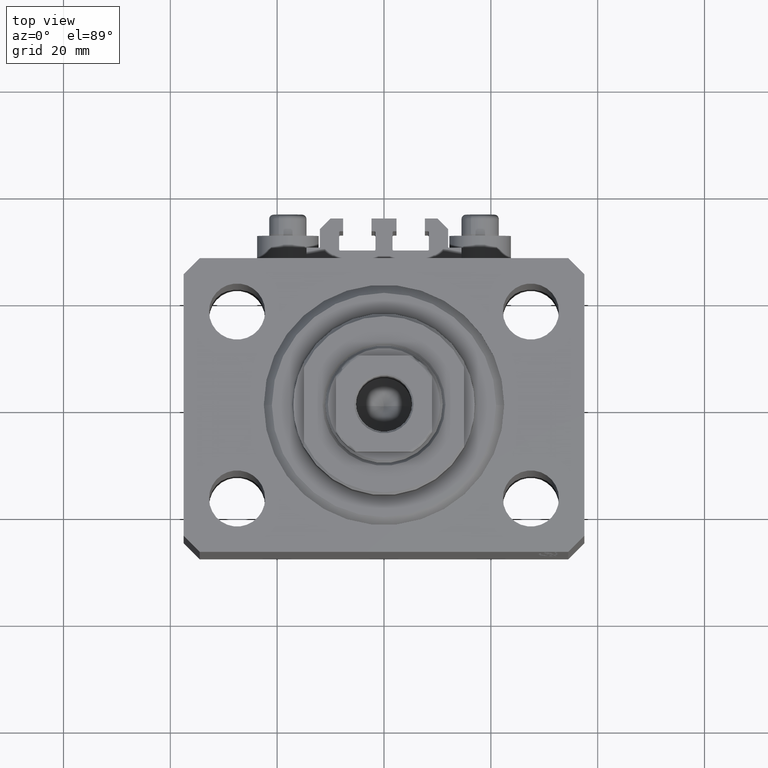
[diagram: clean part render]
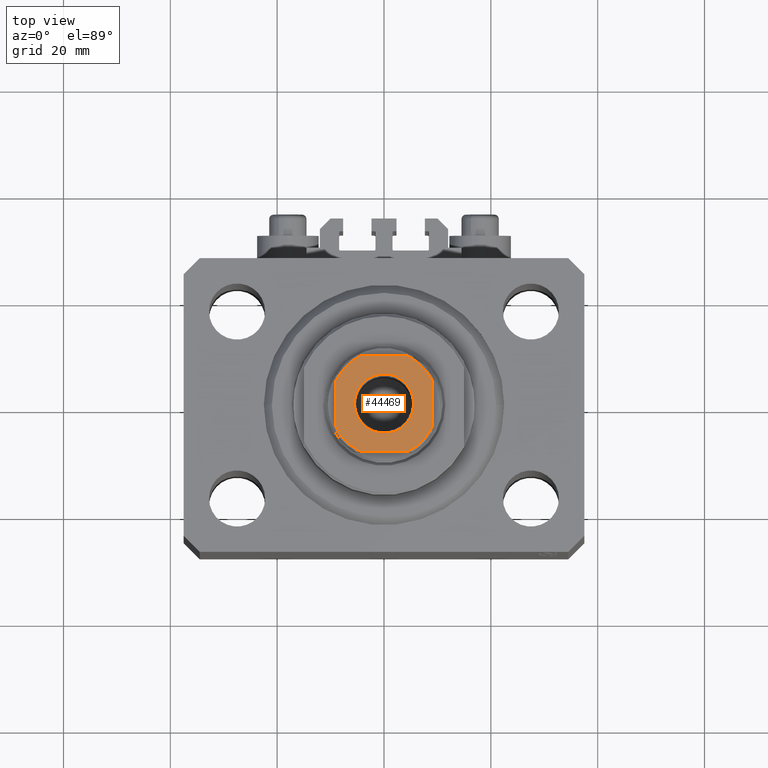
[diagram: same view with one face highlighted and labeled with its STEP entity id]
A machine part, top view. The second image highlights one B-rep face of the part: STEP entity #44469.
In plain terms, the highlighted planar face has unit normal (0, 0, 1).
Its self-contained STEP definition (entity closure, byte-faithful):
#485 = ORIENTED_EDGE ( 'NONE', *, *, #2831, .T. ) ;
#513 = CARTESIAN_POINT ( 'NONE',  ( -8.999999999999998224, -9.000000000000001776, 85.10000000000000853 ) ) ;
#1072 = DIRECTION ( 'NONE',  ( -0.000000000000000000, 0.000000000000000000, 1.000000000000000000 ) ) ;
#1442 = ORIENTED_EDGE ( 'NONE', *, *, #22910, .T. ) ;
#2441 = AXIS2_PLACEMENT_3D ( 'NONE', #5228, #26849, #38133 ) ;
#2831 = EDGE_CURVE ( 'NONE', #14877, #41230, #37973, .T. ) ;
#3029 = CIRCLE ( 'NONE', #9968, 10.00000000000000000 ) ;
#3437 = EDGE_CURVE ( 'NONE', #41939, #36572, #21681, .T. ) ;
#3634 = DIRECTION ( 'NONE',  ( 1.000000000000000000, 0.000000000000000000, 0.000000000000000000 ) ) ;
#3636 = DIRECTION ( 'NONE',  ( 1.000000000000000000, 0.000000000000000000, 0.000000000000000000 ) ) ;
#4735 = CIRCLE ( 'NONE', #2441, 10.00000000000000000 ) ;
#5228 = CARTESIAN_POINT ( 'NONE',  ( 0.000000000000000000, 0.000000000000000000, 85.10000000000000853 ) ) ;
#5535 = EDGE_CURVE ( 'NONE', #14366, #14877, #4735, .T. ) ;
#5881 = EDGE_CURVE ( 'NONE', #11663, #13601, #13959, .T. ) ;
#6689 = CARTESIAN_POINT ( 'NONE',  ( 9.000000000000000000, 8.999999999999998224, 85.10000000000000853 ) ) ;
#8510 = DIRECTION ( 'NONE',  ( 1.000000000000000000, 0.000000000000000000, 0.000000000000000000 ) ) ;
#9864 = CARTESIAN_POINT ( 'NONE',  ( -9.000000000000000000, 8.999999999999998224, 85.10000000000000853 ) ) ;
#9968 = AXIS2_PLACEMENT_3D ( 'NONE', #9993, #14279, #39278 ) ;
#9993 = CARTESIAN_POINT ( 'NONE',  ( 0.000000000000000000, 0.000000000000000000, 85.10000000000000853 ) ) ;
#10305 = LINE ( 'NONE', #6689, #13135 ) ;
#10796 = CIRCLE ( 'NONE', #12342, 10.00000000000000000 ) ;
#11663 = VERTEX_POINT ( 'NONE', #46394 ) ;
#11991 = CARTESIAN_POINT ( 'NONE',  ( 9.000000000000000000, 4.358898943540675752, 85.10000000000000853 ) ) ;
#12342 = AXIS2_PLACEMENT_3D ( 'NONE', #36538, #22839, #3634 ) ;
#12419 = DIRECTION ( 'NONE',  ( -0.000000000000000000, 0.000000000000000000, 1.000000000000000000 ) ) ;
#13135 = VECTOR ( 'NONE', #35985, 1000.000000000000000 ) ;
#13400 = DIRECTION ( 'NONE',  ( 1.000000000000000000, 0.000000000000000000, 0.000000000000000000 ) ) ;
#13601 = VERTEX_POINT ( 'NONE', #34333 ) ;
#13790 = AXIS2_PLACEMENT_3D ( 'NONE', #41712, #12419, #42179 ) ;
#13959 = LINE ( 'NONE', #14665, #27756 ) ;
#14279 = DIRECTION ( 'NONE',  ( -0.000000000000000000, 0.000000000000000000, 1.000000000000000000 ) ) ;
#14366 = VERTEX_POINT ( 'NONE', #38764 ) ;
#14665 = CARTESIAN_POINT ( 'NONE',  ( -9.000000000000000000, 8.999999999999998224, 85.10000000000000853 ) ) ;
#14877 = VERTEX_POINT ( 'NONE', #43371 ) ;
#15133 = ORIENTED_EDGE ( 'NONE', *, *, #5535, .T. ) ;
#15548 = AXIS2_PLACEMENT_3D ( 'NONE', #22362, #39666, #3636 ) ;
#16215 = VECTOR ( 'NONE', #22355, 1000.000000000000000 ) ;
#16337 = ORIENTED_EDGE ( 'NONE', *, *, #29899, .T. ) ;
#16816 = LINE ( 'NONE', #9864, #29974 ) ;
#18237 = ORIENTED_EDGE ( 'NONE', *, *, #29352, .T. ) ;
#18529 = AXIS2_PLACEMENT_3D ( 'NONE', #22427, #1072, #8510 ) ;
#19542 = PLANE ( 'NONE',  #18529 ) ;
#20751 = CARTESIAN_POINT ( 'NONE',  ( 9.000000000000001776, -4.358898943540675752, 85.10000000000000853 ) ) ;
#21681 = CIRCLE ( 'NONE', #15548, 5.549999999999985612 ) ;
#22355 = DIRECTION ( 'NONE',  ( 1.000000000000000000, 0.000000000000000000, 0.000000000000000000 ) ) ;
#22362 = CARTESIAN_POINT ( 'NONE',  ( 0.000000000000000000, 0.000000000000000000, 85.10000000000000853 ) ) ;
#22427 = CARTESIAN_POINT ( 'NONE',  ( 0.000000000000000000, 0.000000000000000000, 85.10000000000000853 ) ) ;
#22839 = DIRECTION ( 'NONE',  ( -0.000000000000000000, 0.000000000000000000, 1.000000000000000000 ) ) ;
#22910 = EDGE_CURVE ( 'NONE', #28700, #11663, #3029, .T. ) ;
#23265 = VERTEX_POINT ( 'NONE', #32650 ) ;
#23717 = EDGE_CURVE ( 'NONE', #41230, #40776, #34491, .T. ) ;
#23971 = CARTESIAN_POINT ( 'NONE',  ( 0.000000000000000000, 0.000000000000000000, 85.10000000000000853 ) ) ;
#24048 = EDGE_LOOP ( 'NONE', ( #18237, #15133, #485, #27374, #16337, #1442, #31714, #26648 ) ) ;
#24257 = EDGE_CURVE ( 'NONE', #36572, #41939, #34421, .T. ) ;
#26032 = FACE_OUTER_BOUND ( 'NONE', #24048, .T. ) ;
#26648 = ORIENTED_EDGE ( 'NONE', *, *, #41977, .T. ) ;
#26849 = DIRECTION ( 'NONE',  ( -0.000000000000000000, 0.000000000000000000, 1.000000000000000000 ) ) ;
#27374 = ORIENTED_EDGE ( 'NONE', *, *, #23717, .T. ) ;
#27756 = VECTOR ( 'NONE', #39653, 1000.000000000000000 ) ;
#28700 = VERTEX_POINT ( 'NONE', #11991 ) ;
#29352 = EDGE_CURVE ( 'NONE', #23265, #14366, #16816, .T. ) ;
#29899 = EDGE_CURVE ( 'NONE', #40776, #28700, #10305, .T. ) ;
#29974 = VECTOR ( 'NONE', #42522, 1000.000000000000000 ) ;
#31714 = ORIENTED_EDGE ( 'NONE', *, *, #5881, .T. ) ;
#32650 = CARTESIAN_POINT ( 'NONE',  ( -9.000000000000000000, 4.358898943540674864, 85.10000000000000853 ) ) ;
#33485 = EDGE_LOOP ( 'NONE', ( #41315, #36755 ) ) ;
#34333 = CARTESIAN_POINT ( 'NONE',  ( -4.358898943540678417, 8.999999999999998224, 85.10000000000000853 ) ) ;
#34421 = CIRCLE ( 'NONE', #39757, 5.549999999999985612 ) ;
#34491 = CIRCLE ( 'NONE', #13790, 10.00000000000000000 ) ;
#35985 = DIRECTION ( 'NONE',  ( -9.637352644315595243E-17, 1.000000000000000000, -0.000000000000000000 ) ) ;
#36538 = CARTESIAN_POINT ( 'NONE',  ( 0.000000000000000000, 0.000000000000000000, 85.10000000000000853 ) ) ;
#36572 = VERTEX_POINT ( 'NONE', #36618 ) ;
#36618 = CARTESIAN_POINT ( 'NONE',  ( 5.549999999999985612, 0.000000000000000000, 85.10000000000000853 ) ) ;
#36755 = ORIENTED_EDGE ( 'NONE', *, *, #3437, .T. ) ;
#37973 = LINE ( 'NONE', #513, #16215 ) ;
#38133 = DIRECTION ( 'NONE',  ( 1.000000000000000000, 0.000000000000000000, 0.000000000000000000 ) ) ;
#38764 = CARTESIAN_POINT ( 'NONE',  ( -9.000000000000000000, -4.358898943540675752, 85.10000000000000853 ) ) ;
#39278 = DIRECTION ( 'NONE',  ( 1.000000000000000000, 0.000000000000000000, 0.000000000000000000 ) ) ;
#39653 = DIRECTION ( 'NONE',  ( -1.000000000000000000, -0.000000000000000000, -0.000000000000000000 ) ) ;
#39666 = DIRECTION ( 'NONE',  ( 0.000000000000000000, -0.000000000000000000, -1.000000000000000000 ) ) ;
#39757 = AXIS2_PLACEMENT_3D ( 'NONE', #23971, #47176, #13400 ) ;
#40605 = CARTESIAN_POINT ( 'NONE',  ( 4.358898943540671311, -9.000000000000001776, 85.10000000000000853 ) ) ;
#40776 = VERTEX_POINT ( 'NONE', #20751 ) ;
#41230 = VERTEX_POINT ( 'NONE', #40605 ) ;
#41315 = ORIENTED_EDGE ( 'NONE', *, *, #24257, .T. ) ;
#41712 = CARTESIAN_POINT ( 'NONE',  ( 0.000000000000000000, 0.000000000000000000, 85.10000000000000853 ) ) ;
#41939 = VERTEX_POINT ( 'NONE', #43746 ) ;
#41977 = EDGE_CURVE ( 'NONE', #13601, #23265, #10796, .T. ) ;
#42179 = DIRECTION ( 'NONE',  ( 1.000000000000000000, 0.000000000000000000, 0.000000000000000000 ) ) ;
#42522 = DIRECTION ( 'NONE',  ( 9.637352644315595243E-17, -1.000000000000000000, 0.000000000000000000 ) ) ;
#43371 = CARTESIAN_POINT ( 'NONE',  ( -4.358898943540671311, -9.000000000000001776, 85.10000000000000853 ) ) ;
#43746 = CARTESIAN_POINT ( 'NONE',  ( -5.549999999999985612, 6.796789735267793031E-16, 85.10000000000000853 ) ) ;
#44284 = FACE_BOUND ( 'NONE', #33485, .T. ) ;
#44469 = ADVANCED_FACE ( 'NONE', ( #44284, #26032 ), #19542, .T. ) ;
#46394 = CARTESIAN_POINT ( 'NONE',  ( 4.358898943540677529, 8.999999999999998224, 85.10000000000000853 ) ) ;
#47176 = DIRECTION ( 'NONE',  ( 0.000000000000000000, -0.000000000000000000, -1.000000000000000000 ) ) ;